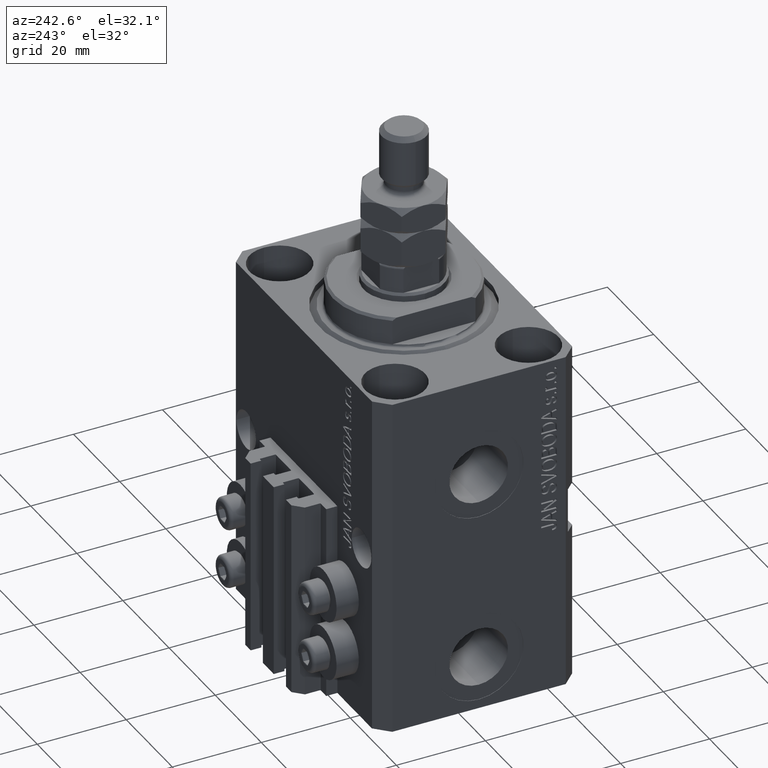
[diagram: clean part render]
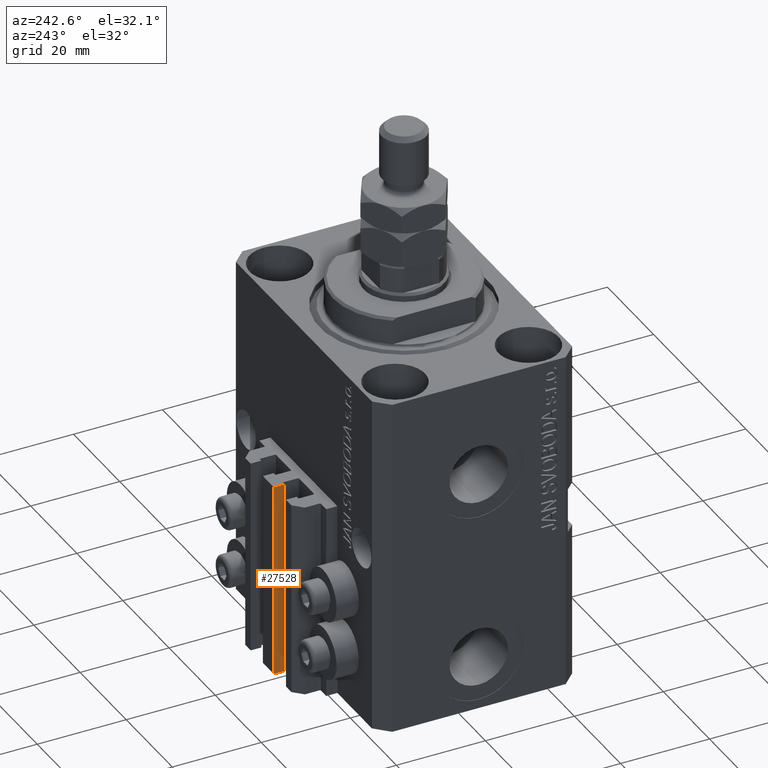
[diagram: same view with one face highlighted and labeled with its STEP entity id]
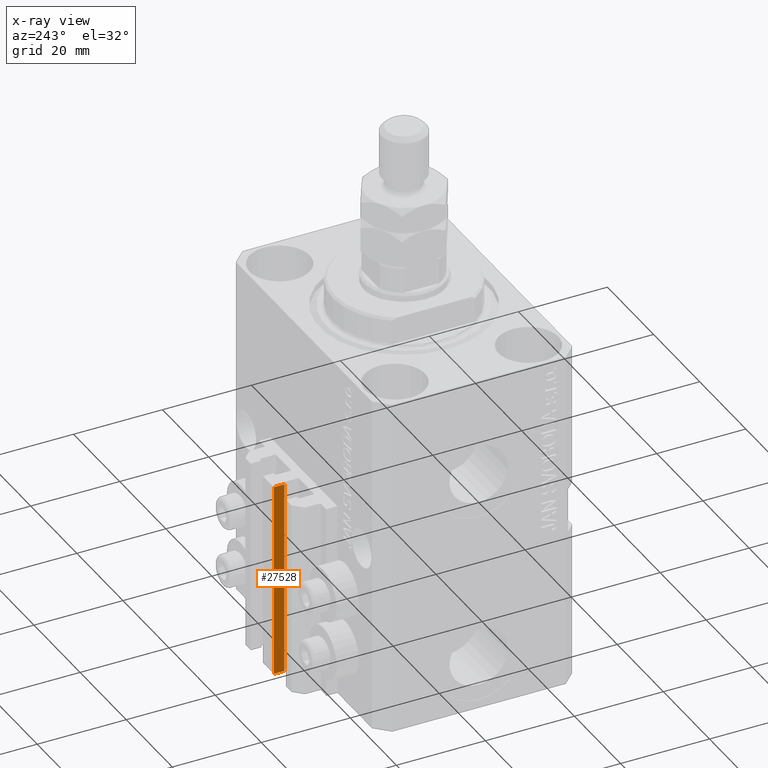
[diagram: x-ray of the same camera — body ghosted, the highlighted face saturated]
A machine part, auxiliary view. The second image highlights one B-rep face of the part: STEP entity #27528.
The next image is the same camera in x-ray: the body ghosted, the highlighted face saturated — about 0% of this face is hidden behind the body in this view.
In plain terms, the highlighted planar face has unit normal (-1, 0, 0).
Its self-contained STEP definition (entity closure, byte-faithful):
#564 = AXIS2_PLACEMENT_3D ( 'NONE', #7437, #12111, #22471 ) ;
#1006 = DIRECTION ( 'NONE',  ( 0.000000000000000000, 0.000000000000000000, 1.000000000000000000 ) ) ;
#2858 = CARTESIAN_POINT ( 'NONE',  ( -2.350000000000003197, 28.09999999999950049, -33.00000000000000000 ) ) ;
#2897 = EDGE_CURVE ( 'NONE', #32379, #33324, #42406, .T. ) ;
#5533 = CARTESIAN_POINT ( 'NONE',  ( -2.350000000000003197, 30.49999999999949907, -33.00000000000000000 ) ) ;
#7096 = VERTEX_POINT ( 'NONE', #39534 ) ;
#7437 = CARTESIAN_POINT ( 'NONE',  ( -2.350000000000003197, 30.49999999999949907, -77.00000000000000000 ) ) ;
#7625 = VECTOR ( 'NONE', #16122, 1000.000000000000000 ) ;
#10780 = CARTESIAN_POINT ( 'NONE',  ( -2.350000000000003197, 30.49999999999949907, -77.00000000000000000 ) ) ;
#11144 = PLANE ( 'NONE',  #564 ) ;
#11254 = DIRECTION ( 'NONE',  ( 0.000000000000000000, -1.000000000000000000, 0.000000000000000000 ) ) ;
#12111 = DIRECTION ( 'NONE',  ( -1.000000000000000000, 0.000000000000000000, 0.000000000000000000 ) ) ;
#13725 = EDGE_CURVE ( 'NONE', #16729, #32379, #25814, .T. ) ;
#15562 = CARTESIAN_POINT ( 'NONE',  ( -2.350000000000003197, 28.09999999999950049, -77.00000000000000000 ) ) ;
#16122 = DIRECTION ( 'NONE',  ( 0.000000000000000000, 0.000000000000000000, 1.000000000000000000 ) ) ;
#16729 = VERTEX_POINT ( 'NONE', #17786 ) ;
#17786 = CARTESIAN_POINT ( 'NONE',  ( -2.350000000000003197, 30.49999999999949907, -77.00000000000000000 ) ) ;
#19351 = LINE ( 'NONE', #5533, #25787 ) ;
#19821 = LINE ( 'NONE', #30162, #7625 ) ;
#22471 = DIRECTION ( 'NONE',  ( 0.000000000000000000, 0.000000000000000000, 1.000000000000000000 ) ) ;
#22843 = EDGE_CURVE ( 'NONE', #16729, #7096, #19821, .T. ) ;
#24494 = DIRECTION ( 'NONE',  ( 0.000000000000000000, -1.000000000000000000, 0.000000000000000000 ) ) ;
#25787 = VECTOR ( 'NONE', #24494, 1000.000000000000000 ) ;
#25814 = LINE ( 'NONE', #10780, #48229 ) ;
#27528 = ADVANCED_FACE ( 'NONE', ( #41198 ), #11144, .T. ) ;
#28251 = EDGE_CURVE ( 'NONE', #7096, #33324, #19351, .T. ) ;
#30162 = CARTESIAN_POINT ( 'NONE',  ( -2.350000000000003197, 30.49999999999949907, -77.00000000000000000 ) ) ;
#31934 = VECTOR ( 'NONE', #1006, 1000.000000000000000 ) ;
#32379 = VERTEX_POINT ( 'NONE', #48496 ) ;
#33324 = VERTEX_POINT ( 'NONE', #2858 ) ;
#37015 = EDGE_LOOP ( 'NONE', ( #45682, #41801, #40146, #43383 ) ) ;
#39534 = CARTESIAN_POINT ( 'NONE',  ( -2.350000000000003197, 30.49999999999949907, -33.00000000000000000 ) ) ;
#40146 = ORIENTED_EDGE ( 'NONE', *, *, #13725, .T. ) ;
#41198 = FACE_OUTER_BOUND ( 'NONE', #37015, .T. ) ;
#41801 = ORIENTED_EDGE ( 'NONE', *, *, #22843, .F. ) ;
#42406 = LINE ( 'NONE', #15562, #31934 ) ;
#43383 = ORIENTED_EDGE ( 'NONE', *, *, #2897, .T. ) ;
#45682 = ORIENTED_EDGE ( 'NONE', *, *, #28251, .F. ) ;
#48229 = VECTOR ( 'NONE', #11254, 1000.000000000000000 ) ;
#48496 = CARTESIAN_POINT ( 'NONE',  ( -2.350000000000003197, 28.09999999999950049, -77.00000000000000000 ) ) ;